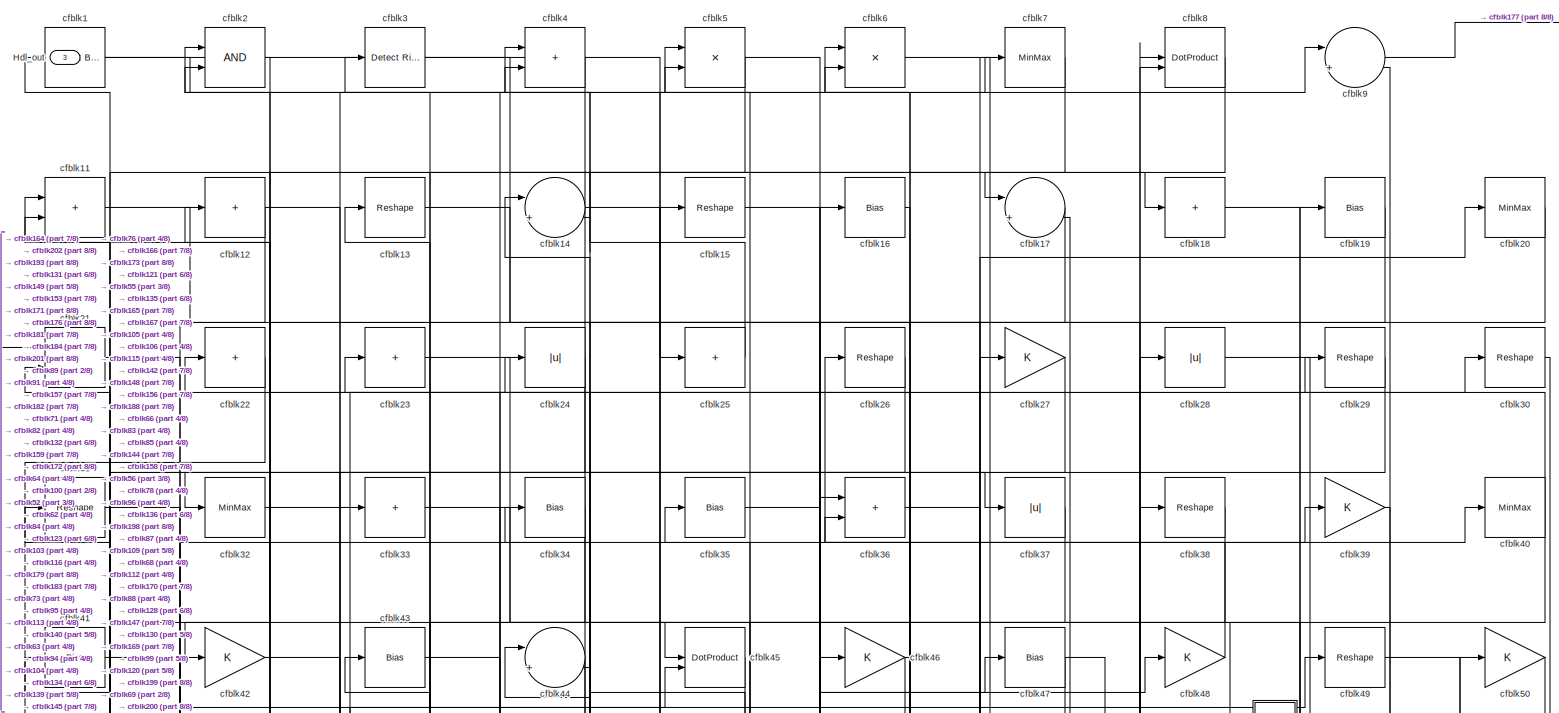
[diagram: root canvas - part 1/8, full width, top band]
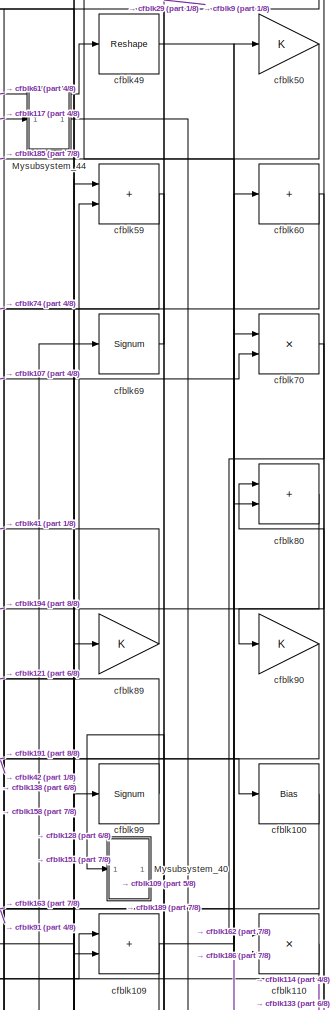
[diagram: root canvas - part 2/8, middle right region]
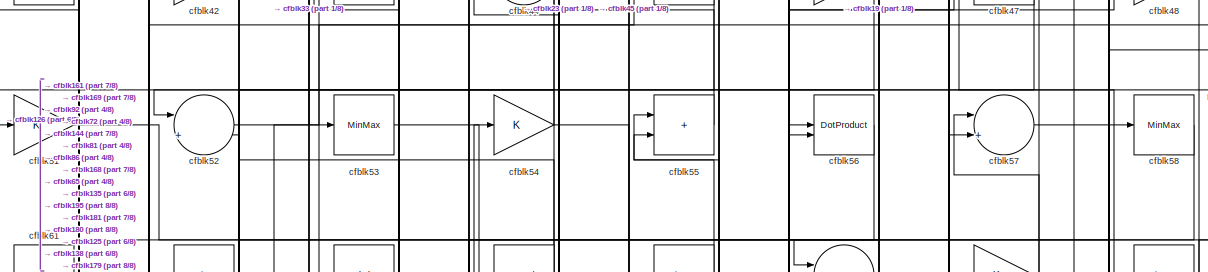
[diagram: root canvas - part 3/8, full width, top band]
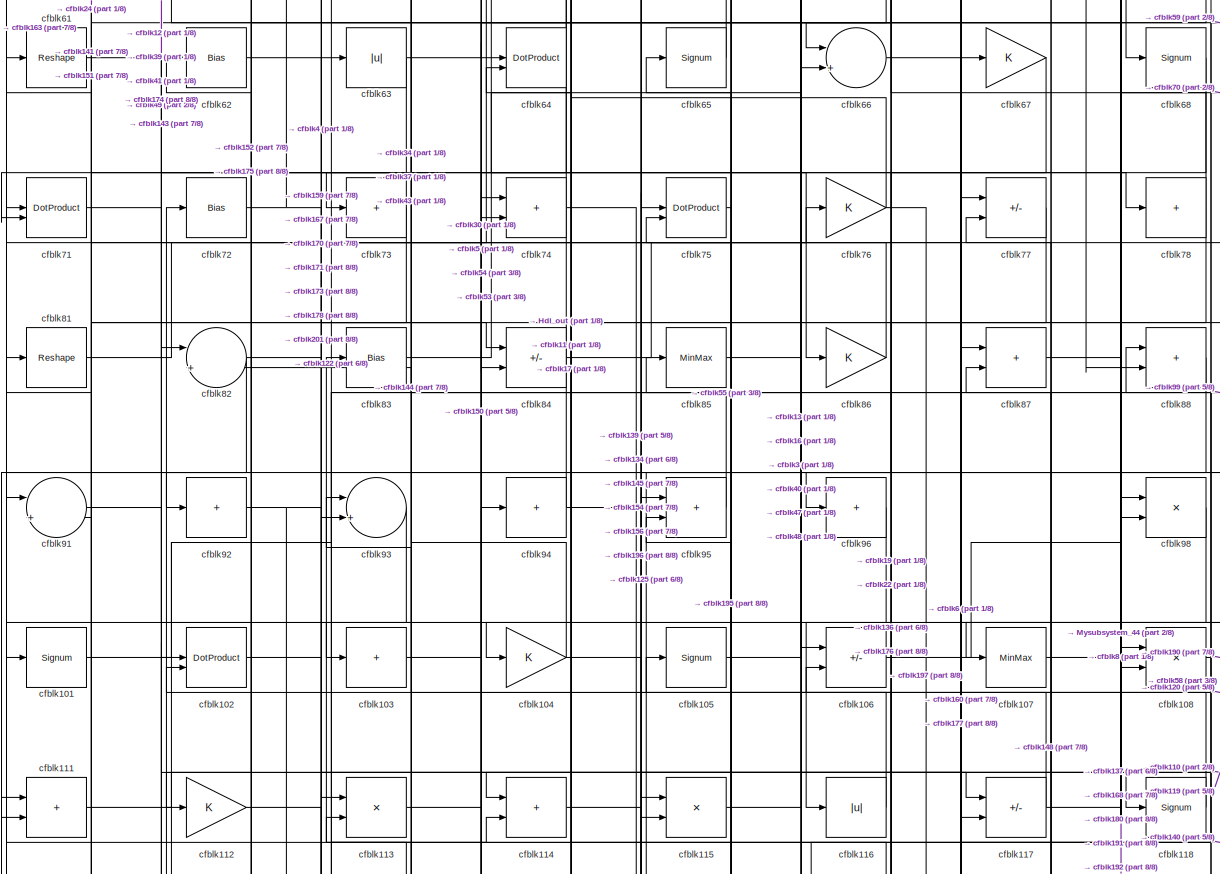
[diagram: root canvas - part 4/8, full width, middle band]
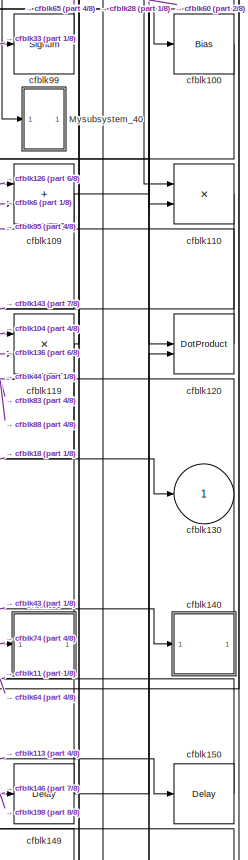
[diagram: root canvas - part 5/8, middle right region]
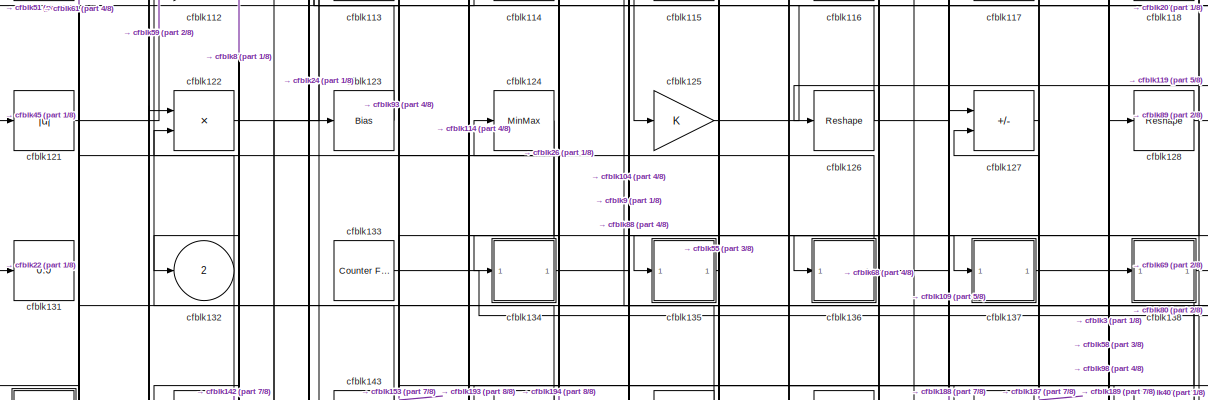
[diagram: root canvas - part 6/8, full width, middle band]
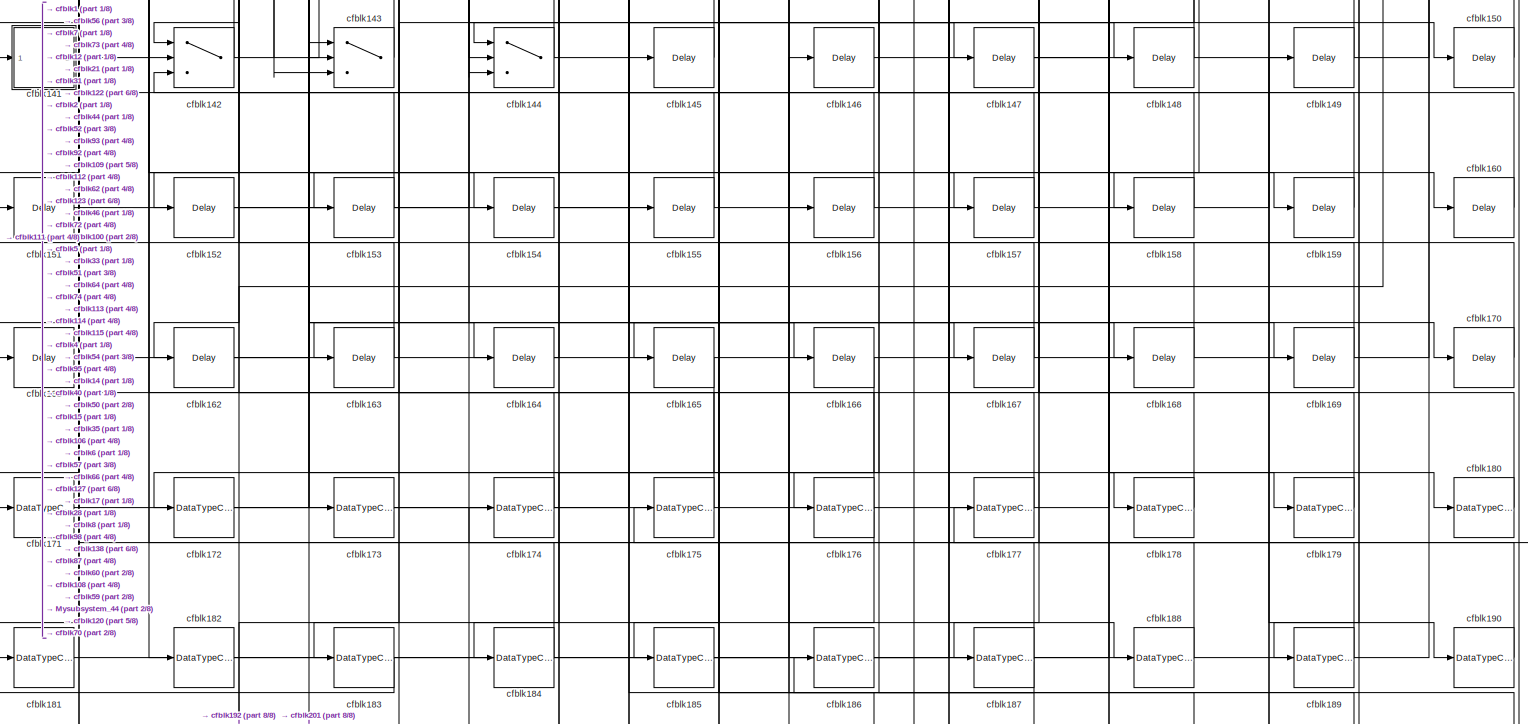
[diagram: root canvas - part 7/8, full width, bottom band]
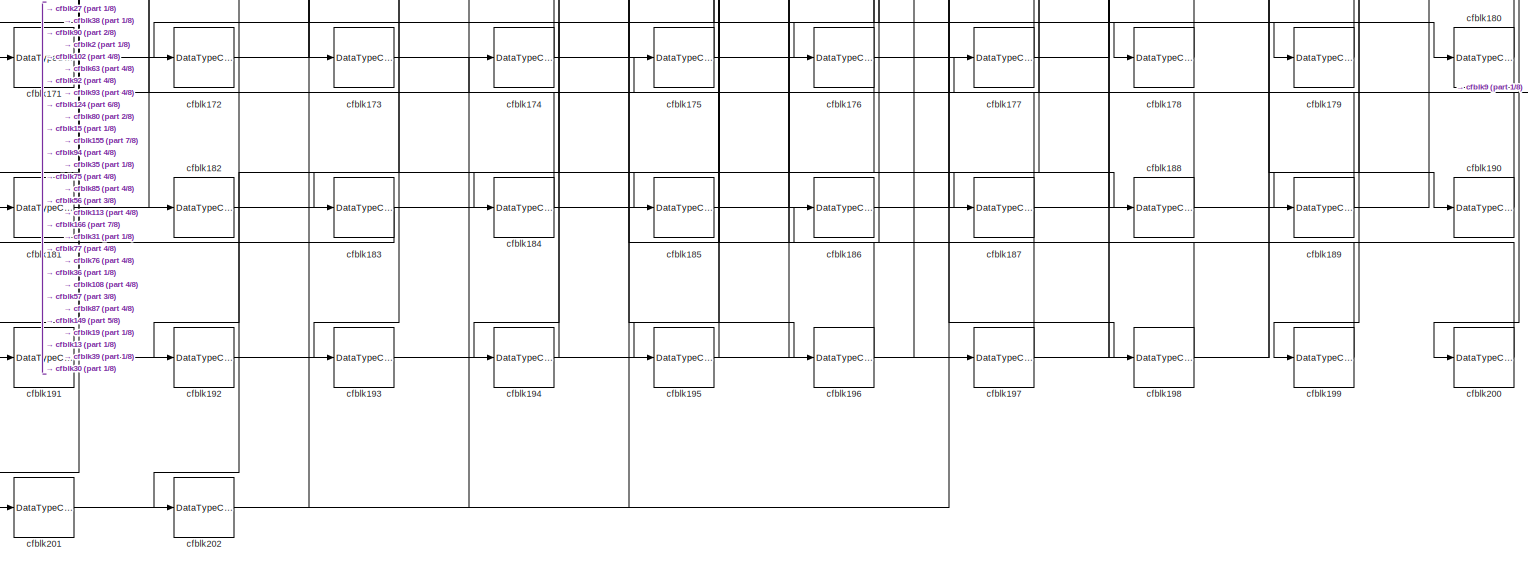
[diagram: root canvas - part 8/8, full width, bottom band]
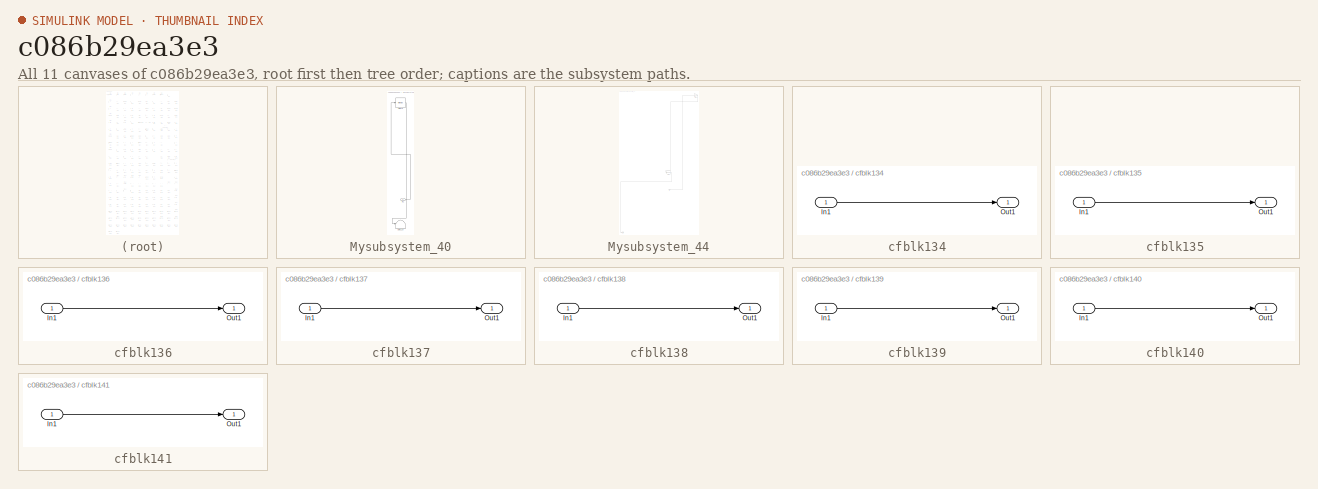
[diagram: thumbnail index - all 11 canvases of the model, root first then tree order]
MODEL slx_c086b29ea3e3
KIND model
CONFIG AbsTol = auto
CONFIG EnableMultiTasking = off
CONFIG FixedStep = auto
CONFIG MaxStep = auto
CONFIG MinStep = auto
CONFIG RelTol = 1e-3
CONFIG SampleTimeConstraint = Unconstrained
CONFIG SolverName = VariableStepAuto
CONFIG StartTime = 0.0
CONFIG StopTime = 10.0
BLOCK [Outport] Hdl_out
  OutDataTypeStr = uint8
  Port = 3
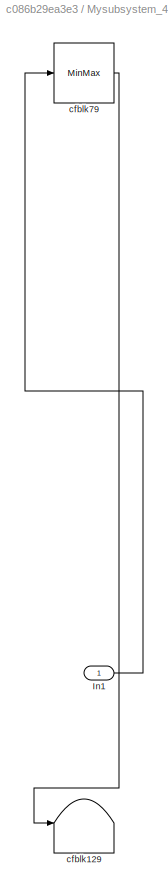
BLOCK [SubSystem] Mysubsystem_40
  RTWFcnName = Mysubsystem_40
  RTWFcnNameOpts = User specified
  RTWFileNameOpts = Use function name
  RTWSystemCode = Reusable function
  TreatAsAtomicUnit = on
BLOCK [Inport] Mysubsystem_40/In1
BLOCK [Terminator] Mysubsystem_40/cfblk129
BLOCK [MinMax] Mysubsystem_40/cfblk79
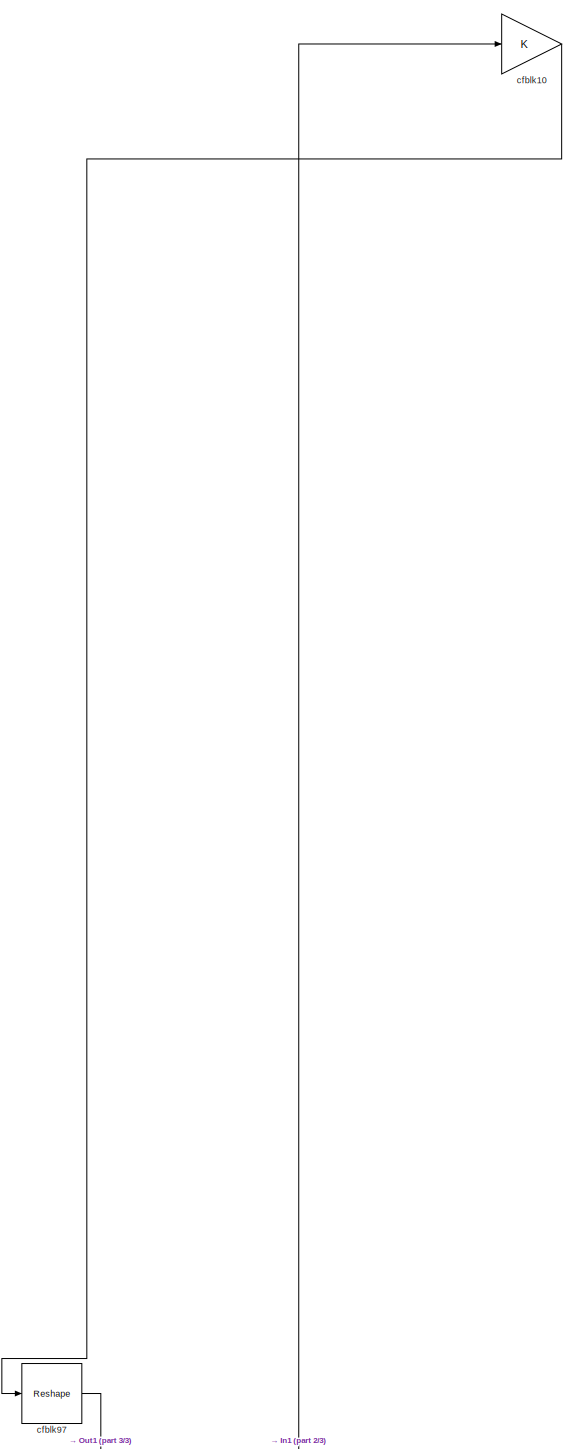
[diagram: Mysubsystem_44 - part 1/3, top right region]
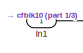
[diagram: Mysubsystem_44 - part 2/3, bottom center region]
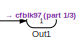
[diagram: Mysubsystem_44 - part 3/3, bottom left region]
BLOCK [SubSystem] Mysubsystem_44
  RTWFcnName = Mysubsystem_44
  RTWFcnNameOpts = User specified
  RTWFileNameOpts = Use function name
  RTWSystemCode = Reusable function
  TreatAsAtomicUnit = on
BLOCK [Inport] Mysubsystem_44/In1
BLOCK [Outport] Mysubsystem_44/Out1
BLOCK [Gain] Mysubsystem_44/cfblk10
BLOCK [Reshape] Mysubsystem_44/cfblk97
BLOCK [Reference] cfblk1  REF=simulink/Logic and Bit
Operations/Extract Bits
  LibrarySourceBlock = hdlsllib/Logic and Bit\nOperations/Extract Bits
  SourceBlock = simulink/Logic and Bit\nOperations/Extract Bits
  SourceType = Extract Bits
BLOCK [Bias] cfblk100
  Bias = 0.0
  SaturateOnIntegerOverflow = off
BLOCK [Signum] cfblk101
BLOCK [DotProduct] cfblk102
  OutDataTypeStr = uint8
BLOCK [Sum] cfblk103
  IconShape = rectangular
  Inputs = +
  OutDataTypeStr = uint8
BLOCK [Gain] cfblk104
  OutDataTypeStr = uint8
BLOCK [Signum] cfblk105
BLOCK [Sum] cfblk106
  IconShape = rectangular
  Inputs = +-
  OutDataTypeStr = uint8
BLOCK [MinMax] cfblk107
  OutDataTypeStr = uint8
BLOCK [Product] cfblk108
  Inputs = */
  OutDataTypeStr = uint8
  RndMeth = Zero
  SaturateOnIntegerOverflow = on
BLOCK [Sum] cfblk109
  IconShape = rectangular
  OutDataTypeStr = uint8
BLOCK [Sum] cfblk11
  IconShape = rectangular
  OutDataTypeStr = uint8
BLOCK [Product] cfblk110
  Inputs = */
  OutDataTypeStr = uint8
  RndMeth = Zero
  SaturateOnIntegerOverflow = on
BLOCK [Sum] cfblk111
  IconShape = rectangular
  OutDataTypeStr = uint8
BLOCK [Gain] cfblk112
  OutDataTypeStr = uint8
BLOCK [Product] cfblk113
  Inputs = */
  OutDataTypeStr = uint8
  RndMeth = Zero
  SaturateOnIntegerOverflow = on
BLOCK [Sum] cfblk114
  IconShape = rectangular
  OutDataTypeStr = uint8
BLOCK [Product] cfblk115
  Inputs = */
  OutDataTypeStr = uint8
  RndMeth = Zero
  SaturateOnIntegerOverflow = on
BLOCK [Abs] cfblk116
  OutDataTypeStr = uint8
  SaturateOnIntegerOverflow = off
BLOCK [Sum] cfblk117
  IconShape = rectangular
  Inputs = +-
  OutDataTypeStr = uint8
BLOCK [Signum] cfblk118
BLOCK [Product] cfblk119
  Inputs = */
  OutDataTypeStr = uint8
  RndMeth = Zero
  SaturateOnIntegerOverflow = on
BLOCK [Sum] cfblk12
  IconShape = rectangular
  Inputs = +
  OutDataTypeStr = uint8
BLOCK [DotProduct] cfblk120
  OutDataTypeStr = uint8
BLOCK [Abs] cfblk121
  OutDataTypeStr = uint8
  SaturateOnIntegerOverflow = off
BLOCK [Product] cfblk122
  Inputs = */
  OutDataTypeStr = uint8
  RndMeth = Zero
  SaturateOnIntegerOverflow = on
BLOCK [Bias] cfblk123
  Bias = 0.0
  SaturateOnIntegerOverflow = off
BLOCK [MinMax] cfblk124
  OutDataTypeStr = uint8
BLOCK [Gain] cfblk125
  OutDataTypeStr = uint8
BLOCK [Reshape] cfblk126
BLOCK [Sum] cfblk127
  IconShape = rectangular
  Inputs = +-
  OutDataTypeStr = uint8
BLOCK [Reshape] cfblk128
BLOCK [Reshape] cfblk13
BLOCK [Outport] cfblk130
  OutDataTypeStr = uint8
  VectorParamsAs1DForOutWhenUnconnected = off
BLOCK [Display] cfblk131
  Decimation = 1
BLOCK [Outport] cfblk132
  OutDataTypeStr = uint8
  Port = 2
  VectorParamsAs1DForOutWhenUnconnected = off
BLOCK [Reference] cfblk133  REF=hdlsllib/Sources/Counter
Free-Running
  SourceBlock = hdlsllib/Sources/Counter\nFree-Running
  SourceType = Counter Free-Running
BLOCK [SubSystem] cfblk134
  LibrarySourceBlock = hdlsllib/Ports &\nSubsystems/Subsystem
BLOCK [Inport] cfblk134/In1
BLOCK [Outport] cfblk134/Out1
BLOCK [SubSystem] cfblk135
  LibrarySourceBlock = hdlsllib/Ports &\nSubsystems/Subsystem
BLOCK [Inport] cfblk135/In1
BLOCK [Outport] cfblk135/Out1
BLOCK [SubSystem] cfblk136
  LibrarySourceBlock = hdlsllib/Ports &\nSubsystems/Subsystem
BLOCK [Inport] cfblk136/In1
BLOCK [Outport] cfblk136/Out1
BLOCK [SubSystem] cfblk137
  LibrarySourceBlock = hdlsllib/Ports &\nSubsystems/Subsystem
BLOCK [Inport] cfblk137/In1
BLOCK [Outport] cfblk137/Out1
BLOCK [SubSystem] cfblk138
  LibrarySourceBlock = hdlsllib/Ports &\nSubsystems/Subsystem
BLOCK [Inport] cfblk138/In1
BLOCK [Outport] cfblk138/Out1
BLOCK [SubSystem] cfblk139
  LibrarySourceBlock = hdlsllib/Ports &\nSubsystems/Subsystem
BLOCK [Inport] cfblk139/In1
BLOCK [Outport] cfblk139/Out1
BLOCK [Sum] cfblk14
  Inputs = |++
  OutDataTypeStr = uint8
BLOCK [SubSystem] cfblk140
  LibrarySourceBlock = hdlsllib/Ports &\nSubsystems/Subsystem
BLOCK [Inport] cfblk140/In1
BLOCK [Outport] cfblk140/Out1
BLOCK [SubSystem] cfblk141
  LibrarySourceBlock = hdlsllib/Ports &\nSubsystems/Subsystem
BLOCK [Inport] cfblk141/In1
BLOCK [Outport] cfblk141/Out1
BLOCK [Switch] cfblk142
  InputSameDT = off
  OutDataTypeStr = uint8
  SaturateOnIntegerOverflow = off
BLOCK [Switch] cfblk143
  InputSameDT = off
  OutDataTypeStr = uint8
  SaturateOnIntegerOverflow = off
BLOCK [Switch] cfblk144
  InputSameDT = off
  OutDataTypeStr = uint8
  SaturateOnIntegerOverflow = off
BLOCK [Delay] cfblk145
  InputPortMap = u0
  SampleTime = 1
BLOCK [Delay] cfblk146
  InputPortMap = u0
  SampleTime = 1
BLOCK [Delay] cfblk147
  InputPortMap = u0
  SampleTime = 1
BLOCK [Delay] cfblk148
  InputPortMap = u0
  SampleTime = 1
BLOCK [Delay] cfblk149
  InputPortMap = u0
  SampleTime = 1
BLOCK [Reshape] cfblk15
BLOCK [Delay] cfblk150
  InputPortMap = u0
  SampleTime = 1
BLOCK [Delay] cfblk151
  InputPortMap = u0
  SampleTime = 1
BLOCK [Delay] cfblk152
  InputPortMap = u0
  SampleTime = 1
BLOCK [Delay] cfblk153
  InputPortMap = u0
  SampleTime = 1
BLOCK [Delay] cfblk154
  InputPortMap = u0
  SampleTime = 1
BLOCK [Delay] cfblk155
  InputPortMap = u0
  SampleTime = 1
BLOCK [Delay] cfblk156
  InputPortMap = u0
  SampleTime = 1
BLOCK [Delay] cfblk157
  InputPortMap = u0
  SampleTime = 1
BLOCK [Delay] cfblk158
  InputPortMap = u0
  SampleTime = 1
BLOCK [Delay] cfblk159
  InputPortMap = u0
  SampleTime = 1
BLOCK [Bias] cfblk16
  Bias = 0.0
  SaturateOnIntegerOverflow = off
BLOCK [Delay] cfblk160
  InputPortMap = u0
  SampleTime = 1
BLOCK [Delay] cfblk161
  InputPortMap = u0
  SampleTime = 1
BLOCK [Delay] cfblk162
  InputPortMap = u0
  SampleTime = 1
BLOCK [Delay] cfblk163
  InputPortMap = u0
  SampleTime = 1
BLOCK [Delay] cfblk164
  InputPortMap = u0
  SampleTime = 1
BLOCK [Delay] cfblk165
  InputPortMap = u0
  SampleTime = 1
BLOCK [Delay] cfblk166
  InputPortMap = u0
  SampleTime = 1
BLOCK [Delay] cfblk167
  InputPortMap = u0
  SampleTime = 1
BLOCK [Delay] cfblk168
  InputPortMap = u0
  SampleTime = 1
BLOCK [Delay] cfblk169
  InputPortMap = u0
  SampleTime = 1
BLOCK [Sum] cfblk17
  Inputs = |++
  OutDataTypeStr = uint8
BLOCK [Delay] cfblk170
  InputPortMap = u0
  SampleTime = 1
BLOCK [DataTypeConversion] cfblk171
  OutDataTypeStr = uint8
  RndMeth = Floor
  SaturateOnIntegerOverflow = off
BLOCK [DataTypeConversion] cfblk172
  OutDataTypeStr = uint8
  RndMeth = Floor
  SaturateOnIntegerOverflow = off
BLOCK [DataTypeConversion] cfblk173
  OutDataTypeStr = uint8
  RndMeth = Floor
  SaturateOnIntegerOverflow = off
BLOCK [DataTypeConversion] cfblk174
  OutDataTypeStr = uint8
  RndMeth = Floor
  SaturateOnIntegerOverflow = off
BLOCK [DataTypeConversion] cfblk175
  OutDataTypeStr = uint8
  RndMeth = Floor
  SaturateOnIntegerOverflow = off
BLOCK [DataTypeConversion] cfblk176
  OutDataTypeStr = uint8
  RndMeth = Floor
  SaturateOnIntegerOverflow = off
BLOCK [DataTypeConversion] cfblk177
  OutDataTypeStr = uint8
  RndMeth = Floor
  SaturateOnIntegerOverflow = off
BLOCK [DataTypeConversion] cfblk178
  OutDataTypeStr = uint8
  RndMeth = Floor
  SaturateOnIntegerOverflow = off
BLOCK [DataTypeConversion] cfblk179
  OutDataTypeStr = uint8
  RndMeth = Floor
  SaturateOnIntegerOverflow = off
BLOCK [Sum] cfblk18
  IconShape = rectangular
  Inputs = +
  OutDataTypeStr = uint8
BLOCK [DataTypeConversion] cfblk180
  OutDataTypeStr = uint8
  RndMeth = Floor
  SaturateOnIntegerOverflow = off
BLOCK [DataTypeConversion] cfblk181
  OutDataTypeStr = uint8
  RndMeth = Floor
  SaturateOnIntegerOverflow = off
BLOCK [DataTypeConversion] cfblk182
  OutDataTypeStr = uint8
  RndMeth = Floor
  SaturateOnIntegerOverflow = off
BLOCK [DataTypeConversion] cfblk183
  OutDataTypeStr = uint8
  RndMeth = Floor
  SaturateOnIntegerOverflow = off
BLOCK [DataTypeConversion] cfblk184
  OutDataTypeStr = uint8
  RndMeth = Floor
  SaturateOnIntegerOverflow = off
BLOCK [DataTypeConversion] cfblk185
  OutDataTypeStr = uint8
  RndMeth = Floor
  SaturateOnIntegerOverflow = off
BLOCK [DataTypeConversion] cfblk186
  OutDataTypeStr = uint8
  RndMeth = Floor
  SaturateOnIntegerOverflow = off
BLOCK [DataTypeConversion] cfblk187
  OutDataTypeStr = uint8
  RndMeth = Floor
  SaturateOnIntegerOverflow = off
BLOCK [DataTypeConversion] cfblk188
  OutDataTypeStr = uint8
  RndMeth = Floor
  SaturateOnIntegerOverflow = off
BLOCK [DataTypeConversion] cfblk189
  OutDataTypeStr = uint8
  RndMeth = Floor
  SaturateOnIntegerOverflow = off
BLOCK [Bias] cfblk19
  Bias = 0.0
  SaturateOnIntegerOverflow = off
BLOCK [DataTypeConversion] cfblk190
  OutDataTypeStr = uint8
  RndMeth = Floor
  SaturateOnIntegerOverflow = off
BLOCK [DataTypeConversion] cfblk191
  OutDataTypeStr = uint8
  RndMeth = Floor
  SaturateOnIntegerOverflow = off
BLOCK [DataTypeConversion] cfblk192
  OutDataTypeStr = uint8
  RndMeth = Floor
  SaturateOnIntegerOverflow = off
BLOCK [DataTypeConversion] cfblk193
  OutDataTypeStr = uint8
  RndMeth = Floor
  SaturateOnIntegerOverflow = off
BLOCK [DataTypeConversion] cfblk194
  OutDataTypeStr = uint8
  RndMeth = Floor
  SaturateOnIntegerOverflow = off
BLOCK [DataTypeConversion] cfblk195
  OutDataTypeStr = uint8
  RndMeth = Floor
  SaturateOnIntegerOverflow = off
BLOCK [DataTypeConversion] cfblk196
  OutDataTypeStr = uint8
  RndMeth = Floor
  SaturateOnIntegerOverflow = off
BLOCK [DataTypeConversion] cfblk197
  OutDataTypeStr = uint8
  RndMeth = Floor
  SaturateOnIntegerOverflow = off
BLOCK [DataTypeConversion] cfblk198
  OutDataTypeStr = uint8
  RndMeth = Floor
  SaturateOnIntegerOverflow = off
BLOCK [DataTypeConversion] cfblk199
  OutDataTypeStr = uint8
  RndMeth = Floor
  SaturateOnIntegerOverflow = off
BLOCK [Logic] cfblk2
  AllPortsSameDT = off
  OutDataTypeStr = boolean
BLOCK [MinMax] cfblk20
  OutDataTypeStr = uint8
BLOCK [DataTypeConversion] cfblk200
  OutDataTypeStr = uint8
  RndMeth = Floor
  SaturateOnIntegerOverflow = off
BLOCK [DataTypeConversion] cfblk201
  OutDataTypeStr = uint8
  RndMeth = Floor
  SaturateOnIntegerOverflow = off
BLOCK [DataTypeConversion] cfblk202
  OutDataTypeStr = uint8
  RndMeth = Floor
  SaturateOnIntegerOverflow = off
BLOCK [Sum] cfblk21
  IconShape = rectangular
  OutDataTypeStr = uint8
BLOCK [Sum] cfblk22
  IconShape = rectangular
  Inputs = +
  OutDataTypeStr = uint8
BLOCK [Sum] cfblk23
  IconShape = rectangular
  Inputs = +
  OutDataTypeStr = uint8
BLOCK [Abs] cfblk24
  OutDataTypeStr = uint8
  SaturateOnIntegerOverflow = off
BLOCK [Sum] cfblk25
  IconShape = rectangular
  Inputs = +
  OutDataTypeStr = uint8
BLOCK [Reshape] cfblk26
BLOCK [Gain] cfblk27
  OutDataTypeStr = uint8
BLOCK [Abs] cfblk28
  OutDataTypeStr = uint8
  SaturateOnIntegerOverflow = off
BLOCK [Reshape] cfblk29
BLOCK [Reference] cfblk3  REF=hdlsllib/Logic and Bit
Operations/Detect Rise
Positive
  SourceBlock = hdlsllib/Logic and Bit\nOperations/Detect Rise\nPositive
  SourceType = Detect Rise Positive
BLOCK [Reshape] cfblk30
BLOCK [Reshape] cfblk31
BLOCK [MinMax] cfblk32
  OutDataTypeStr = uint8
BLOCK [Sum] cfblk33
  IconShape = rectangular
  Inputs = +
  OutDataTypeStr = uint8
BLOCK [Bias] cfblk34
  Bias = 0.0
  SaturateOnIntegerOverflow = off
BLOCK [Bias] cfblk35
  Bias = 0.0
  SaturateOnIntegerOverflow = off
BLOCK [Sum] cfblk36
  IconShape = rectangular
  OutDataTypeStr = uint8
BLOCK [Abs] cfblk37
  OutDataTypeStr = uint8
  SaturateOnIntegerOverflow = off
BLOCK [Reshape] cfblk38
BLOCK [Gain] cfblk39
  OutDataTypeStr = uint8
BLOCK [Sum] cfblk4
  IconShape = rectangular
  OutDataTypeStr = uint8
BLOCK [MinMax] cfblk40
  OutDataTypeStr = uint8
BLOCK [Bias] cfblk41
  Bias = 0.0
  SaturateOnIntegerOverflow = off
BLOCK [Gain] cfblk42
  OutDataTypeStr = uint8
BLOCK [Bias] cfblk43
  Bias = 0.0
  SaturateOnIntegerOverflow = off
BLOCK [Sum] cfblk44
  Inputs = |++
  OutDataTypeStr = uint8
BLOCK [DotProduct] cfblk45
  OutDataTypeStr = uint8
BLOCK [Gain] cfblk46
  OutDataTypeStr = uint8
BLOCK [Bias] cfblk47
  Bias = 0.0
  SaturateOnIntegerOverflow = off
BLOCK [Gain] cfblk48
  OutDataTypeStr = uint8
BLOCK [Reshape] cfblk49
BLOCK [Product] cfblk5
  Inputs = */
  OutDataTypeStr = uint8
  RndMeth = Zero
  SaturateOnIntegerOverflow = on
BLOCK [Gain] cfblk50
  OutDataTypeStr = uint8
BLOCK [Gain] cfblk51
  OutDataTypeStr = uint8
BLOCK [Sum] cfblk52
  Inputs = |++
  OutDataTypeStr = uint8
BLOCK [MinMax] cfblk53
  OutDataTypeStr = uint8
BLOCK [Gain] cfblk54
  OutDataTypeStr = uint8
BLOCK [Sum] cfblk55
  IconShape = rectangular
  OutDataTypeStr = uint8
BLOCK [DotProduct] cfblk56
  OutDataTypeStr = uint8
BLOCK [Sum] cfblk57
  Inputs = |++
  OutDataTypeStr = uint8
BLOCK [MinMax] cfblk58
  OutDataTypeStr = uint8
BLOCK [Sum] cfblk59
  IconShape = rectangular
  OutDataTypeStr = uint8
BLOCK [Product] cfblk6
  Inputs = */
  OutDataTypeStr = uint8
  RndMeth = Zero
  SaturateOnIntegerOverflow = on
BLOCK [Sum] cfblk60
  IconShape = rectangular
  Inputs = +
  OutDataTypeStr = uint8
BLOCK [Reshape] cfblk61
BLOCK [Bias] cfblk62
  Bias = 0.0
  SaturateOnIntegerOverflow = off
BLOCK [Abs] cfblk63
  OutDataTypeStr = uint8
  SaturateOnIntegerOverflow = off
BLOCK [DotProduct] cfblk64
  OutDataTypeStr = uint8
BLOCK [Signum] cfblk65
BLOCK [Sum] cfblk66
  Inputs = |++
  OutDataTypeStr = uint8
BLOCK [Gain] cfblk67
  OutDataTypeStr = uint8
BLOCK [Signum] cfblk68
BLOCK [Signum] cfblk69
BLOCK [MinMax] cfblk7
  OutDataTypeStr = uint8
BLOCK [Product] cfblk70
  Inputs = */
  OutDataTypeStr = uint8
  RndMeth = Zero
  SaturateOnIntegerOverflow = on
BLOCK [DotProduct] cfblk71
  OutDataTypeStr = uint8
BLOCK [Bias] cfblk72
  Bias = 0.0
  SaturateOnIntegerOverflow = off
BLOCK [Sum] cfblk73
  IconShape = rectangular
  Inputs = +
  OutDataTypeStr = uint8
BLOCK [Sum] cfblk74
  IconShape = rectangular
  OutDataTypeStr = uint8
BLOCK [DotProduct] cfblk75
  OutDataTypeStr = uint8
BLOCK [Gain] cfblk76
  OutDataTypeStr = uint8
BLOCK [Sum] cfblk77
  IconShape = rectangular
  Inputs = +-
  OutDataTypeStr = uint8
BLOCK [Sum] cfblk78
  IconShape = rectangular
  Inputs = +
  OutDataTypeStr = uint8
BLOCK [DotProduct] cfblk8
  OutDataTypeStr = uint8
BLOCK [Sum] cfblk80
  IconShape = rectangular
  OutDataTypeStr = uint8
BLOCK [Reshape] cfblk81
BLOCK [Sum] cfblk82
  Inputs = |++
  OutDataTypeStr = uint8
BLOCK [Bias] cfblk83
  Bias = 0.0
  SaturateOnIntegerOverflow = off
BLOCK [Sum] cfblk84
  IconShape = rectangular
  Inputs = +-
  OutDataTypeStr = uint8
BLOCK [MinMax] cfblk85
  OutDataTypeStr = uint8
BLOCK [Gain] cfblk86
  OutDataTypeStr = uint8
BLOCK [Sum] cfblk87
  IconShape = rectangular
  OutDataTypeStr = uint8
BLOCK [Sum] cfblk88
  IconShape = rectangular
  OutDataTypeStr = uint8
BLOCK [Gain] cfblk89
  OutDataTypeStr = uint8
BLOCK [Sum] cfblk9
  Inputs = |++
  OutDataTypeStr = uint8
BLOCK [Gain] cfblk90
  OutDataTypeStr = uint8
BLOCK [Sum] cfblk91
  Inputs = |++
  OutDataTypeStr = uint8
BLOCK [Sum] cfblk92
  IconShape = rectangular
  Inputs = +
  OutDataTypeStr = uint8
BLOCK [Sum] cfblk93
  Inputs = |++
  OutDataTypeStr = uint8
BLOCK [Sum] cfblk94
  IconShape = rectangular
  Inputs = +
  OutDataTypeStr = uint8
BLOCK [Sum] cfblk95
  IconShape = rectangular
  OutDataTypeStr = uint8
BLOCK [Sum] cfblk96
  IconShape = rectangular
  Inputs = +
  OutDataTypeStr = uint8
BLOCK [Product] cfblk98
  Inputs = */
  OutDataTypeStr = uint8
  RndMeth = Zero
  SaturateOnIntegerOverflow = on
BLOCK [Signum] cfblk99
LINE Mysubsystem_40/In1:1 -> Mysubsystem_40/cfblk79:1
LINE Mysubsystem_40/cfblk79:1 -> Mysubsystem_40/cfblk129:1
LINE Mysubsystem_44/In1:1 -> Mysubsystem_44/cfblk10:1
LINE Mysubsystem_44/cfblk10:1 -> Mysubsystem_44/cfblk97:1
LINE Mysubsystem_44/cfblk97:1 -> Mysubsystem_44/Out1:1
LINE Mysubsystem_44:1 -> cfblk162:1
LINE cfblk100:1 -> cfblk163:1
LINE cfblk101:1 -> cfblk76:1
LINE cfblk102:1 -> cfblk173:1
LINE cfblk103:1 -> cfblk94:1
NET cfblk104:1 -> cfblk119:1, cfblk137:1, cfblk82:2
LINE cfblk105:1 -> cfblk48:1
LINE cfblk106:1 -> cfblk8:1
LINE cfblk107:1 -> cfblk70:2
LINE cfblk108:1 -> cfblk190:1
NET cfblk109:1 -> cfblk143:2, cfblk60:1
LINE cfblk110:1 -> cfblk114:1
NET cfblk111:1 -> cfblk118:1, cfblk81:1
LINE cfblk112:1 -> cfblk170:1
NET cfblk113:1 -> cfblk150:1, cfblk30:1
LINE cfblk114:1 -> cfblk145:1
LINE cfblk115:1 -> cfblk16:1
LINE cfblk116:1 -> cfblk43:1
NET cfblk117:1 -> Mysubsystem_44:1, cfblk105:1
LINE cfblk118:1 -> cfblk62:1
NET cfblk119:1 -> Mysubsystem_40:1, cfblk126:1
LINE cfblk11:1 -> cfblk87:1
LINE cfblk120:1 -> cfblk95:2
LINE cfblk121:1 -> cfblk59:2
LINE cfblk122:1 -> cfblk114:2
LINE cfblk123:1 -> cfblk24:1
LINE cfblk124:1 -> cfblk193:1
LINE cfblk125:1 -> cfblk58:1
NET cfblk126:1 -> cfblk109:1, cfblk51:1
LINE cfblk127:1 -> cfblk187:1
LINE cfblk128:1 -> cfblk89:1
NET cfblk12:1 -> cfblk142:2, cfblk84:2
LINE cfblk133:1 -> cfblk80:1
LINE cfblk134/In1:1 -> cfblk134/Out1:1
NET cfblk134:1 -> cfblk61:1, cfblk9:1
LINE cfblk135/In1:1 -> cfblk135/Out1:1
LINE cfblk135:1 -> cfblk55:1
LINE cfblk136/In1:1 -> cfblk136/Out1:1
NET cfblk136:1 -> cfblk119:2, cfblk20:1, cfblk93:1
LINE cfblk137/In1:1 -> cfblk137/Out1:1
LINE cfblk137:1 -> cfblk98:2
LINE cfblk138/In1:1 -> cfblk138/Out1:1
NET cfblk138:1 -> cfblk153:1, cfblk69:1
LINE cfblk139/In1:1 -> cfblk139/Out1:1
LINE cfblk139:1 -> cfblk44:1
LINE cfblk13:1 -> cfblk106:1
LINE cfblk140/In1:1 -> cfblk140/Out1:1
NET cfblk140:1 -> cfblk83:1, cfblk88:1
LINE cfblk141/In1:1 -> cfblk141/Out1:1
LINE cfblk141:1 -> cfblk154:1
NET cfblk142:1 -> cfblk122:2, cfblk123:1, cfblk164:1, cfblk46:1
LINE cfblk143:1 -> cfblk72:1
NET cfblk144:1 -> cfblk113:2, cfblk147:1
LINE cfblk145:1 -> cfblk14:1
LINE cfblk146:1 -> cfblk120:2
LINE cfblk147:1 -> cfblk8:2
LINE cfblk148:1 -> cfblk87:2
LINE cfblk149:1 -> cfblk11:2
LINE cfblk14:1 -> cfblk25:1
LINE cfblk150:1 -> cfblk64:2
LINE cfblk151:1 -> cfblk59:1
LINE cfblk152:1 -> cfblk74:1
LINE cfblk153:1 -> cfblk1:1
LINE cfblk154:1 -> cfblk115:2
LINE cfblk155:1 -> cfblk142:3
LINE cfblk156:1 -> cfblk95:1
LINE cfblk157:1 -> cfblk44:2
LINE cfblk158:1 -> cfblk6:2
LINE cfblk159:1 -> cfblk2:2
LINE cfblk15:1 -> cfblk156:1
LINE cfblk160:1 -> cfblk106:2
LINE cfblk161:1 -> cfblk143:1
LINE cfblk162:1 -> cfblk70:1
LINE cfblk163:1 -> cfblk111:1
LINE cfblk164:1 -> cfblk4:2
LINE cfblk165:1 -> cfblk184:1
LINE cfblk166:1 -> cfblk192:1
LINE cfblk167:1 -> cfblk5:2
LINE cfblk168:1 -> cfblk98:1
LINE cfblk169:1 -> cfblk52:2
LINE cfblk16:1 -> cfblk96:1
LINE cfblk170:1 -> cfblk17:2
LINE cfblk171:1 -> cfblk63:1
LINE cfblk172:1 -> cfblk38:1
LINE cfblk173:1 -> cfblk15:1
LINE cfblk174:1 -> cfblk102:1
LINE cfblk175:1 -> cfblk102:2
NET cfblk176:1 -> cfblk113:1, cfblk175:1, cfblk202:1, cfblk31:1
LINE cfblk177:1 -> cfblk77:1
LINE cfblk178:1 -> cfblk77:2
LINE cfblk179:1 -> cfblk13:1
LINE cfblk17:1 -> cfblk104:1
LINE cfblk180:1 -> cfblk57:1
LINE cfblk181:1 -> cfblk57:2
LINE cfblk182:1 -> cfblk28:1
LINE cfblk183:1 -> cfblk21:1
LINE cfblk184:1 -> cfblk21:2
LINE cfblk185:1 -> cfblk146:1
LINE cfblk186:1 -> cfblk50:1
NET cfblk187:1 -> cfblk122:1, cfblk186:1
LINE cfblk188:1 -> cfblk127:1
LINE cfblk189:1 -> cfblk127:2
LINE cfblk18:1 -> cfblk130:1
LINE cfblk190:1 -> cfblk64:1
LINE cfblk191:1 -> cfblk108:1
LINE cfblk192:1 -> cfblk108:2
LINE cfblk193:1 -> cfblk19:1
LINE cfblk194:1 -> cfblk124:1
NET cfblk195:1 -> cfblk56:1, cfblk85:1
LINE cfblk196:1 -> cfblk75:1
LINE cfblk197:1 -> cfblk75:2
NET cfblk198:1 -> cfblk149:1, cfblk35:1
LINE cfblk199:1 -> cfblk36:1
NET cfblk19:1 -> cfblk56:2, cfblk66:1
LINE cfblk1:1 -> cfblk7:1
LINE cfblk200:1 -> cfblk36:2
NET cfblk201:1 -> cfblk155:1, cfblk174:1, cfblk93:2
LINE cfblk202:1 -> cfblk27:1
LINE cfblk20:1 -> cfblk42:1
LINE cfblk21:1 -> cfblk182:1
LINE cfblk22:1 -> cfblk131:1
LINE cfblk23:1 -> cfblk45:1
LINE cfblk24:1 -> cfblk91:1
LINE cfblk25:1 -> cfblk2:1
LINE cfblk26:1 -> cfblk134:1
LINE cfblk27:1 -> cfblk201:1
LINE cfblk28:1 -> cfblk120:1
LINE cfblk29:1 -> cfblk32:1
LINE cfblk2:1 -> cfblk172:1
LINE cfblk30:1 -> cfblk200:1
LINE cfblk31:1 -> cfblk157:1
LINE cfblk32:1 -> cfblk37:1
NET cfblk33:1 -> cfblk169:1, cfblk99:1
LINE cfblk34:1 -> cfblk103:1
NET cfblk35:1 -> cfblk148:1, cfblk188:1
LINE cfblk36:1 -> cfblk198:1
LINE cfblk37:1 -> cfblk73:1
LINE cfblk38:1 -> cfblk171:1
LINE cfblk39:1 -> cfblk199:1
NET cfblk3:1 -> cfblk128:1, cfblk66:2
NET cfblk40:1 -> cfblk12:1, cfblk135:1, cfblk165:1
NET cfblk41:1 -> cfblk78:1, cfblk82:1
LINE cfblk42:1 -> cfblk100:1
LINE cfblk43:1 -> cfblk140:1
LINE cfblk44:1 -> cfblk142:1
LINE cfblk45:1 -> cfblk121:1
NET cfblk46:1 -> cfblk144:1, cfblk6:1
NET cfblk47:1 -> cfblk112:1, cfblk88:2
LINE cfblk48:1 -> cfblk26:1
LINE cfblk49:1 -> cfblk80:2
NET cfblk4:1 -> cfblk115:1, cfblk166:1
LINE cfblk50:1 -> cfblk185:1
NET cfblk51:1 -> cfblk138:1, cfblk144:2
NET cfblk52:1 -> cfblk33:1, cfblk45:2
LINE cfblk53:1 -> cfblk86:1
NET cfblk54:1 -> cfblk168:1, cfblk52:1
LINE cfblk55:1 -> cfblk23:1
LINE cfblk56:1 -> cfblk161:1
LINE cfblk57:1 -> cfblk179:1
LINE cfblk58:1 -> cfblk92:1
NET cfblk59:1 -> cfblk189:1, cfblk74:2
NET cfblk5:1 -> cfblk183:1, cfblk18:1
NET cfblk60:1 -> cfblk110:1, cfblk158:1
LINE cfblk61:1 -> cfblk49:1
NET cfblk62:1 -> cfblk167:1, cfblk4:1, cfblk84:1
NET cfblk63:1 -> cfblk101:1, cfblk5:1
NET cfblk64:1 -> cfblk11:1, cfblk144:3
LINE cfblk65:1 -> cfblk55:2
LINE cfblk66:1 -> cfblk160:1
LINE cfblk67:1 -> cfblk71:2
LINE cfblk68:1 -> cfblk136:1
NET cfblk69:1 -> cfblk29:1, cfblk9:2
NET cfblk6:1 -> cfblk109:2, cfblk68:1
LINE cfblk70:1 -> cfblk90:1
NET cfblk71:1 -> cfblk117:2, cfblk39:1
NET cfblk72:1 -> cfblk159:1, cfblk53:1
LINE cfblk73:1 -> cfblk141:1
LINE cfblk74:1 -> cfblk139:1
LINE cfblk75:1 -> cfblk195:1
NET cfblk76:1 -> cfblk197:1, cfblk34:1
LINE cfblk77:1 -> cfblk176:1
NET cfblk78:1 -> cfblk22:1, cfblk91:2
NET cfblk7:1 -> cfblk17:1, cfblk181:1
LINE cfblk80:1 -> cfblk194:1
LINE cfblk81:1 -> cfblk54:1
NET cfblk82:1 -> cfblk111:2, cfblk117:1
LINE cfblk83:1 -> cfblk40:1
LINE cfblk84:1 -> cfblk67:1
LINE cfblk85:1 -> cfblk47:1
LINE cfblk86:1 -> cfblk71:1
LINE cfblk87:1 -> cfblk180:1
LINE cfblk88:1 -> cfblk125:1
LINE cfblk89:1 -> cfblk41:1
NET cfblk8:1 -> cfblk132:1, cfblk14:2
LINE cfblk90:1 -> cfblk191:1
LINE cfblk91:1 -> cfblk110:2
NET cfblk92:1 -> cfblk143:3, cfblk178:1
NET cfblk93:1 -> cfblk151:1, cfblk152:1
NET cfblk94:1 -> Hdl_out:1, cfblk196:1
LINE cfblk95:1 -> cfblk3:1
LINE cfblk96:1 -> cfblk116:1
LINE cfblk98:1 -> cfblk107:1
LINE cfblk99:1 -> cfblk65:1
LINE cfblk9:1 -> cfblk177:1
note: NET lines group one-source signal fan-out (src -> all destinations, sorted); 1:1 wires keep LINE
